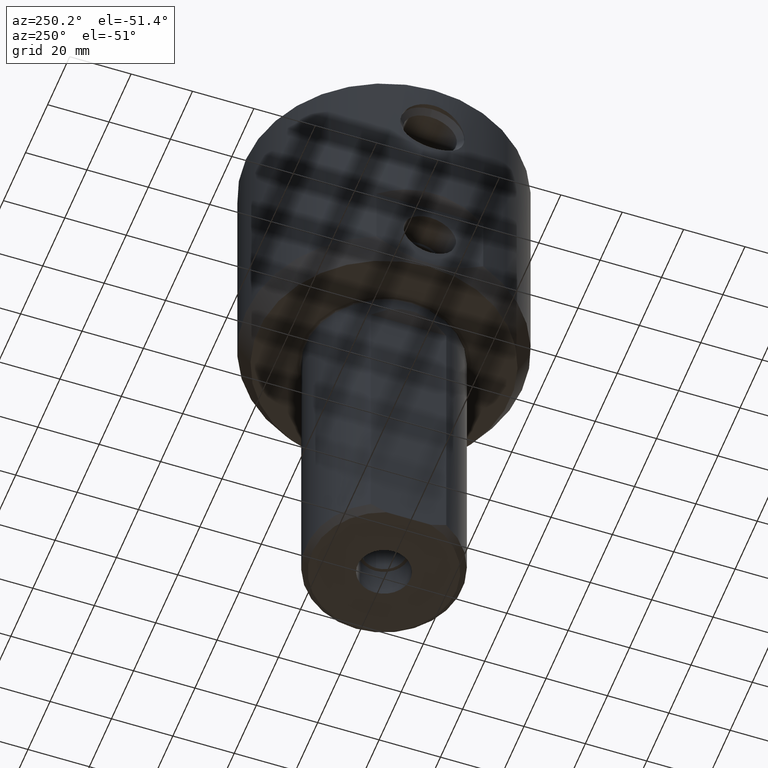
[diagram: clean part render]
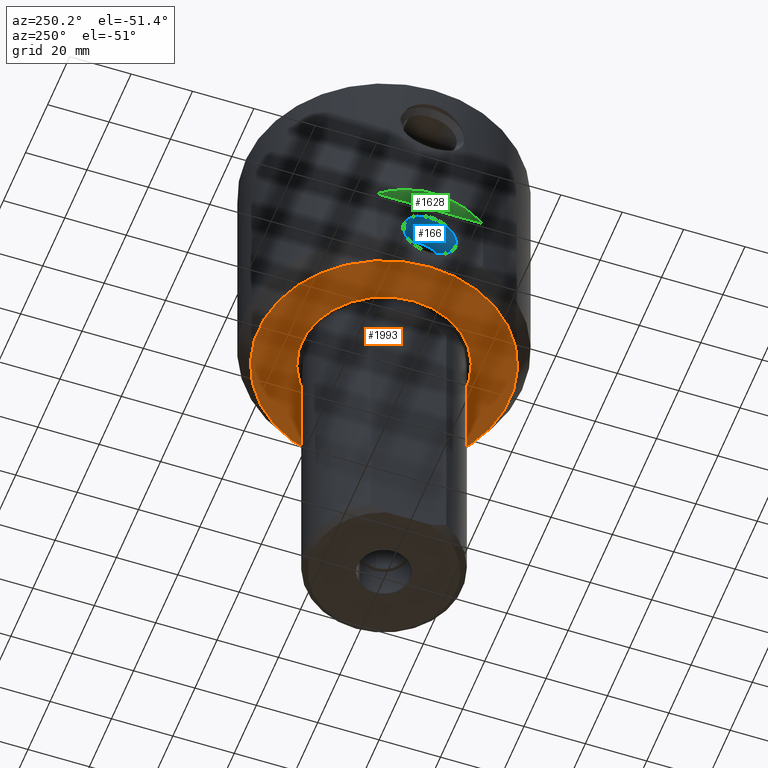
[diagram: same view with three faces highlighted in distinct colors, each labeled with its STEP entity id]
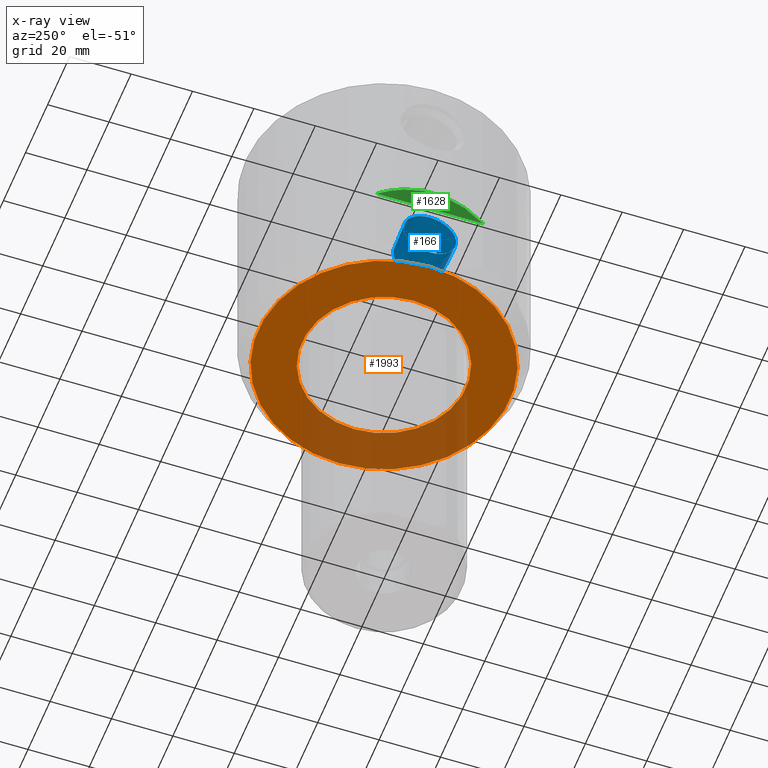
[diagram: x-ray of the same camera — body ghosted, the three highlighted faces saturated]
A machine part, auxiliary view with three faces highlighted in distinct colors.
The next image is the same camera in x-ray (body ghosted, the three faces saturated) — at least one of them is partly hidden behind the body in this view.
Their STEP definitions:

[orange] entity #1993 — the highlighted planar face has unit normal (0, 0, 1).
#89 = DIRECTION ( 'NONE',  ( -1.000000000000000000, 0.0000000000000000000, 0.0000000000000000000 ) ) ;
#92 = AXIS2_PLACEMENT_3D ( 'NONE', #374, #1524, #526 ) ;
#107 = CARTESIAN_POINT ( 'NONE',  ( 40.95854811567259190, 0.0000000000000000000, -83.00000000000000000 ) ) ;
#197 = EDGE_CURVE ( 'NONE', #1946, #1946, #1201, .T. ) ;
#254 = CARTESIAN_POINT ( 'NONE',  ( 0.0000000000000000000, 0.0000000000000000000, -83.00000000000000000 ) ) ;
#367 = ORIENTED_EDGE ( 'NONE', *, *, #197, .T. ) ;
#374 = CARTESIAN_POINT ( 'NONE',  ( 0.0000000000000000000, 0.0000000000000000000, -83.00000000000000000 ) ) ;
#376 = FACE_OUTER_BOUND ( 'NONE', #740, .T. ) ;
#400 = DIRECTION ( 'NONE',  ( -0.0000000000000000000, -0.0000000000000000000, -1.000000000000000000 ) ) ;
#417 = CARTESIAN_POINT ( 'NONE',  ( -26.76820508075689631, 0.0000000000000000000, -83.00000000000000000 ) ) ;
#526 = DIRECTION ( 'NONE',  ( 1.000000000000000000, 0.0000000000000000000, -0.0000000000000000000 ) ) ;
#686 = ORIENTED_EDGE ( 'NONE', *, *, #716, .F. ) ;
#716 = EDGE_CURVE ( 'NONE', #854, #854, #1869, .T. ) ;
#740 = EDGE_LOOP ( 'NONE', ( #367 ) ) ;
#854 = VERTEX_POINT ( 'NONE', #417 ) ;
#1201 = CIRCLE ( 'NONE', #1284, 40.95854811567259190 ) ;
#1284 = AXIS2_PLACEMENT_3D ( 'NONE', #1599, #400, #1876 ) ;
#1509 = EDGE_LOOP ( 'NONE', ( #686 ) ) ;
#1524 = DIRECTION ( 'NONE',  ( 0.0000000000000000000, 0.0000000000000000000, 1.000000000000000000 ) ) ;
#1599 = CARTESIAN_POINT ( 'NONE',  ( 0.0000000000000000000, 0.0000000000000000000, -83.00000000000000000 ) ) ;
#1706 = AXIS2_PLACEMENT_3D ( 'NONE', #254, #2054, #89 ) ;
#1869 = CIRCLE ( 'NONE', #1706, 26.76820508075689631 ) ;
#1874 = PLANE ( 'NONE',  #92 ) ;
#1876 = DIRECTION ( 'NONE',  ( 1.000000000000000000, 0.0000000000000000000, 0.0000000000000000000 ) ) ;
#1946 = VERTEX_POINT ( 'NONE', #107 ) ;
#1993 = ADVANCED_FACE ( 'NONE', ( #2133, #376 ), #1874, .F. ) ;
#2054 = DIRECTION ( 'NONE',  ( -0.0000000000000000000, -0.0000000000000000000, -1.000000000000000000 ) ) ;
#2133 = FACE_BOUND ( 'NONE', #1509, .T. ) ;

[blue] entity #166 — the highlighted conical surface has half-angle 1.715 deg.
#8 = EDGE_LOOP ( 'NONE', ( #56 ) ) ;
#56 = ORIENTED_EDGE ( 'NONE', *, *, #1767, .T. ) ;
#67 = VERTEX_POINT ( 'NONE', #1771 ) ;
#140 = CARTESIAN_POINT ( 'NONE',  ( -41.49999999999997868, 0.0000000000000000000, -59.42749999999996646 ) ) ;
#166 = ADVANCED_FACE ( 'NONE', ( #588, #920 ), #1021, .F. ) ;
#174 = CIRCLE ( 'NONE', #630, 8.263205966368412092 ) ;
#240 = CARTESIAN_POINT ( 'NONE',  ( -41.49999999999997868, 0.0000000000000000000, -67.99999999999995737 ) ) ;
#344 = DIRECTION ( 'NONE',  ( -1.000000000000000000, -0.0000000000000000000, 2.214422819182140848E-16 ) ) ;
#458 = VERTEX_POINT ( 'NONE', #140 ) ;
#588 = FACE_BOUND ( 'NONE', #1898, .T. ) ;
#630 = AXIS2_PLACEMENT_3D ( 'NONE', #1822, #1651, #669 ) ;
#669 = DIRECTION ( 'NONE',  ( 4.198669337390845482E-16, 0.0000000000000000000, 1.000000000000000000 ) ) ;
#689 = ORIENTED_EDGE ( 'NONE', *, *, #1371, .F. ) ;
#849 = DIRECTION ( 'NONE',  ( -1.000000000000000000, -0.0000000000000000000, 2.214422819182140848E-16 ) ) ;
#920 = FACE_OUTER_BOUND ( 'NONE', #8, .T. ) ;
#1021 = CONICAL_SURFACE ( 'NONE', #1439, 8.572499999999996234, 0.02993239667170292245 ) ;
#1049 = DIRECTION ( 'NONE',  ( 0.0000000000000000000, 0.0000000000000000000, 1.000000000000000000 ) ) ;
#1180 = CARTESIAN_POINT ( 'NONE',  ( -41.49999999999997868, 0.0000000000000000000, -67.99999999999995737 ) ) ;
#1371 = EDGE_CURVE ( 'NONE', #67, #67, #174, .T. ) ;
#1439 = AXIS2_PLACEMENT_3D ( 'NONE', #240, #849, #1739 ) ;
#1462 = CIRCLE ( 'NONE', #1611, 8.572499999999996234 ) ;
#1611 = AXIS2_PLACEMENT_3D ( 'NONE', #1180, #344, #1049 ) ;
#1651 = DIRECTION ( 'NONE',  ( -1.000000000000000000, -0.0000000000000000000, 2.214422819182140848E-16 ) ) ;
#1739 = DIRECTION ( 'NONE',  ( 0.0000000000000000000, 0.0000000000000000000, 1.000000000000000000 ) ) ;
#1767 = EDGE_CURVE ( 'NONE', #458, #458, #1462, .T. ) ;
#1771 = CARTESIAN_POINT ( 'NONE',  ( -31.16999999999998039, 0.0000000000000000000, -59.73679403363155416 ) ) ;
#1822 = CARTESIAN_POINT ( 'NONE',  ( -31.16999999999998394, 0.0000000000000000000, -67.99999999999995737 ) ) ;
#1898 = EDGE_LOOP ( 'NONE', ( #689 ) ) ;

[green] entity #1628 — the highlighted planar face has unit normal (0.7071, 0, 0.7071).
#117 = DIRECTION ( 'NONE',  ( 0.7071067811865462405, 0.0000000000000000000, -0.7071067811865489050 ) ) ;
#189 = VERTEX_POINT ( 'NONE', #1609 ) ;
#242 =( BOUNDED_CURVE ( )  B_SPLINE_CURVE ( 3, ( #2044, #561, #1730, #1530 ),
 .UNSPECIFIED., .F., .T. ) 
 B_SPLINE_CURVE_WITH_KNOTS ( ( 4, 4 ),
 ( 5.886177857980450234, 6.680192756378722230 ),
 .UNSPECIFIED. ) 
 CURVE ( )  GEOMETRIC_REPRESENTATION_ITEM ( )  RATIONAL_B_SPLINE_CURVE ( ( 1.000000000000000000, 0.9481481481481477402, 0.9481481481481477402, 1.000000000000000000 ) ) 
 REPRESENTATION_ITEM ( '' )  );
#429 = LINE ( 'NONE', #1532, #1793 ) ;
#561 = CARTESIAN_POINT ( 'NONE',  ( -46.23046875000000711, -6.117086475458936690, -50.36953124999995879 ) ) ;
#586 = ORIENTED_EDGE ( 'NONE', *, *, #2075, .F. ) ;
#799 = EDGE_CURVE ( 'NONE', #189, #960, #242, .T. ) ;
#933 = PLANE ( 'NONE',  #1896 ) ;
#960 = VERTEX_POINT ( 'NONE', #1555 ) ;
#1069 = FACE_OUTER_BOUND ( 'NONE', #2112, .T. ) ;
#1084 = ORIENTED_EDGE ( 'NONE', *, *, #799, .T. ) ;
#1102 = DIRECTION ( 'NONE',  ( 0.7071067811865489050, 0.0000000000000000000, 0.7071067811865462405 ) ) ;
#1189 = DIRECTION ( 'NONE',  ( -0.0000000000000000000, 1.000000000000000000, -0.0000000000000000000 ) ) ;
#1530 = CARTESIAN_POINT ( 'NONE',  ( -41.49999999999997868, 17.39971264130536710, -55.10000000000000853 ) ) ;
#1532 = CARTESIAN_POINT ( 'NONE',  ( -41.49999999999997868, -45.00000000000000711, -55.10000000000000853 ) ) ;
#1555 = CARTESIAN_POINT ( 'NONE',  ( -41.49999999999997868, 17.39971264130536710, -55.10000000000000853 ) ) ;
#1609 = CARTESIAN_POINT ( 'NONE',  ( -41.49999999999997868, -17.39971264130538842, -55.10000000000000853 ) ) ;
#1628 = ADVANCED_FACE ( 'NONE', ( #1069 ), #933, .F. ) ;
#1730 = CARTESIAN_POINT ( 'NONE',  ( -46.23046875000000711, 6.117086475458926031, -50.36953124999995879 ) ) ;
#1793 = VECTOR ( 'NONE', #1189, 1000.000000000000000 ) ;
#1896 = AXIS2_PLACEMENT_3D ( 'NONE', #2091, #1102, #117 ) ;
#2044 = CARTESIAN_POINT ( 'NONE',  ( -41.49999999999997868, -17.39971264130538842, -55.10000000000000853 ) ) ;
#2075 = EDGE_CURVE ( 'NONE', #189, #960, #429, .T. ) ;
#2091 = CARTESIAN_POINT ( 'NONE',  ( -44.99999999999999289, -45.00000000000000711, -51.59999999999998721 ) ) ;
#2112 = EDGE_LOOP ( 'NONE', ( #1084, #586 ) ) ;